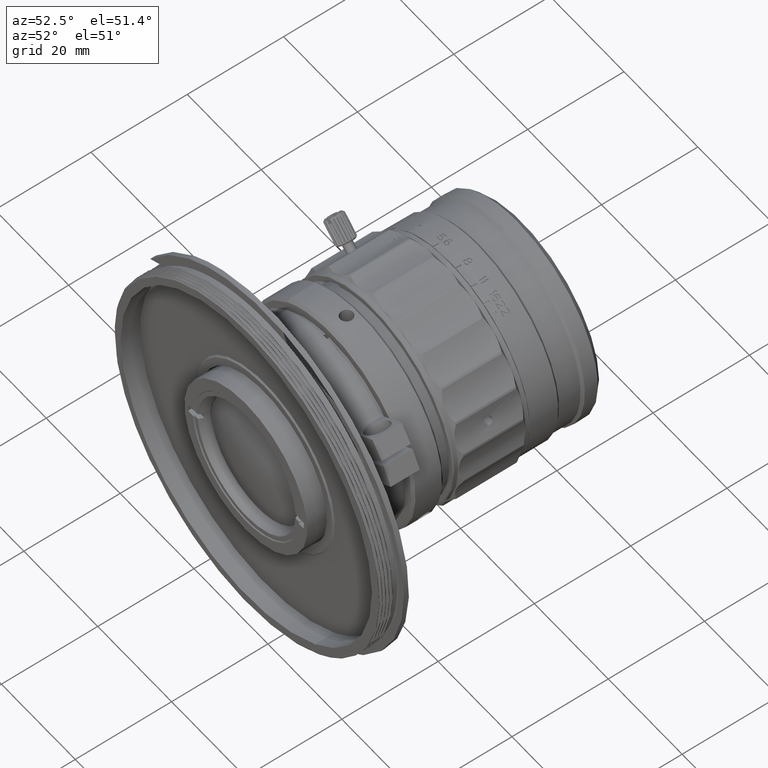
[diagram: clean part render]
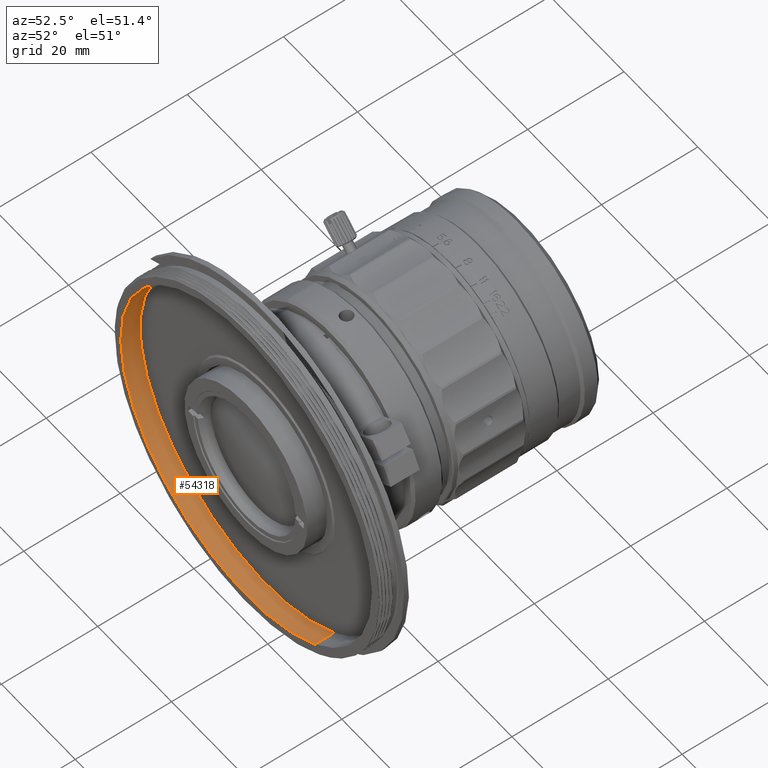
[diagram: same view with one face highlighted and labeled with its STEP entity id]
A machine part, auxiliary view. The second image highlights one B-rep face of the part: STEP entity #54318.
In plain terms, the highlighted face is a freeform B-spline surface patch.
Its self-contained STEP definition (entity closure, byte-faithful):
#219 = CARTESIAN_POINT ( 'NONE',  ( -16.64279739544110726, 0.8732624000000003273, 32.12670380965554529 ) ) ;
#581 = CARTESIAN_POINT ( 'NONE',  ( -20.69433885509236859, 0.8732623999999999942, 53.65615790896836756 ) ) ;
#1313 = CARTESIAN_POINT ( 'NONE',  ( -14.20661645340610768, 0.8732623999999999942, 28.39781218567794596 ) ) ;
#6110 = CARTESIAN_POINT ( 'NONE',  ( -20.93611475789889198, 0.8732624000000003273, 51.43684290940799286 ) ) ;
#6189 = CARTESIAN_POINT ( 'NONE',  ( -62.48455714706746988, 0.8732623999999999942, 40.12990685627620735 ) ) ;
#7204 = CARTESIAN_POINT ( 'NONE',  ( 31.63514334102845282, 0.8732623999999999942, 20.39460919035324693 ) ) ;
#8646 = EDGE_CURVE ( 'NONE', #68534, #66605, #19183, .T. ) ;
#8663 = CARTESIAN_POINT ( 'NONE',  ( -16.29049983246280675, 0.8732623999999997721, 66.20015334309938737 ) ) ;
#12754 = CARTESIAN_POINT ( 'NONE',  ( 14.91448811056497803, 0.8732624000000003273, 14.83715058641785234 ) ) ;
#13113 = CARTESIAN_POINT ( 'NONE',  ( 23.65856379197657589, 0.8732624000000003273, 16.48266301259041455 ) ) ;
#14207 = CARTESIAN_POINT ( 'NONE',  ( -12.34372471265816706, 0.8732623999999997721, 71.58884552142055213 ) ) ;
#14569 = CARTESIAN_POINT ( 'NONE',  ( -5.557058089936160350, 0.8732623999999999942, 77.32210827924559737 ) ) ;
#15197 = VERTEX_POINT ( 'NONE', #53230 ) ;
#15787 = EDGE_CURVE ( 'NONE', #64270, #68534, #56801, .T. ) ;
#18287 = CARTESIAN_POINT ( 'NONE',  ( -19.78025437141756271, 0.8732624000000001052, 58.01552239548664858 ) ) ;
#19183 = B_SPLINE_CURVE_WITH_KNOTS ( 'NONE', 1,
 ( #29278, #57713 ),
 .UNSPECIFIED., .F., .F.,
 ( 2, 2 ),
 ( -1.000000000000000000, 0.0000000000000000000 ),
 .UNSPECIFIED. ) ;
#20399 = CARTESIAN_POINT ( 'NONE',  ( 31.63514334102845282, 0.8732623999999999942, 20.39460919035324693 ) ) ;
#22715 = CARTESIAN_POINT ( 'NONE',  ( -4.302752026331986279, 0.8732624000000001052, 19.52881621329521167 ) ) ;
#22790 = CARTESIAN_POINT ( 'NONE',  ( 31.63514334599999600, 4.873262399999999772, 20.39460920399999111 ) ) ;
#23079 = CARTESIAN_POINT ( 'NONE',  ( -19.11015726062574061, 0.8732624000000002162, 60.14502578314828440 ) ) ;
#23443 = CARTESIAN_POINT ( 'NONE',  ( 1.752375564571384103, 0.8732624000000001052, 16.70915889504743745 ) ) ;
#23815 = CARTESIAN_POINT ( 'NONE',  ( -17.67475325270111952, 0.8732623999999999942, 34.10632026060586242 ) ) ;
#24251 = ORIENTED_EDGE ( 'NONE', *, *, #8646, .F. ) ;
#27252 = CARTESIAN_POINT ( 'NONE',  ( -5.557058091676028155, 4.873262399999999772, 77.32210829037175870 ) ) ;
#28257 = CARTESIAN_POINT ( 'NONE',  ( 8.241243460575541135, 0.8732624000000001052, 15.12497729921668466 ) ) ;
#29278 = CARTESIAN_POINT ( 'NONE',  ( -5.557058089936160350, 0.8732623999999999942, 77.32210827924559737 ) ) ;
#29358 = CARTESIAN_POINT ( 'NONE',  ( -2.344895926405202502, 0.8732623999999999942, 18.45614940852807706 ) ) ;
#30081 = CARTESIAN_POINT ( 'NONE',  ( -7.421503861321573581, 0.8732624000000003273, 76.10401781022383716 ) ) ;
#31929 = CARTESIAN_POINT ( 'NONE',  ( -25.29235572621547234, 4.873262399999999772, -16.79759219318050967 ) ) ;
#32799 = CARTESIAN_POINT ( 'NONE',  ( -25.29235572464795823, 0.8732623999999999942, -16.79759220674349152 ) ) ;
#34168 = CARTESIAN_POINT ( 'NONE',  ( 10.46055848390221854, 0.8732624000000001052, 14.88320128061976710 ) ) ;
#34913 = CARTESIAN_POINT ( 'NONE',  ( 17.13832771941751432, 0.8732624000000002162, 15.03298718282532320 ) ) ;
#35646 = CARTESIAN_POINT ( 'NONE',  ( 3.881878965261079006, 0.8732623999999999942, 16.03906174089226866 ) ) ;
#36167 =( BOUNDED_SURFACE ( )  B_SPLINE_SURFACE ( 1, 3, ( 
 ( #27252, #38713, #72321, #22790 ),
 ( #44613, #6189, #32799, #49794 ) ),
 .UNSPECIFIED., .F., .F., .T. ) 
 B_SPLINE_SURFACE_WITH_KNOTS ( ( 2, 2 ),
 ( 4, 4 ),
 ( 0.0000000000000000000, 1.000000000000000000 ),
 ( 0.0000000000000000000, 1.000000000000000000 ),
 .UNSPECIFIED. ) 
 GEOMETRIC_REPRESENTATION_ITEM ( )  RATIONAL_B_SPLINE_SURFACE ( (
 ( 1.000000000000000000, 0.3333333334700690487, 0.3333333334700690487, 1.000000000000000000),
 ( 1.000000000000000000, 0.3333333334700690487, 0.3333333334700690487, 1.000000000000000000) ) ) 
 REPRESENTATION_ITEM ( '' )  SURFACE ( )  );
#37235 = CARTESIAN_POINT ( 'NONE',  ( 31.63514334103840397, 4.873262399999999772, 20.39460920761489859 ) ) ;
#38713 = CARTESIAN_POINT ( 'NONE',  ( -62.48455714706746988, 4.873262399999999772, 40.12990685627620735 ) ) ;
#41253 = B_SPLINE_CURVE_WITH_KNOTS ( 'NONE', 1,
 ( #37235, #49022 ),
 .UNSPECIFIED., .F., .F.,
 ( 2, 2 ),
 ( -1.000000000000000000, 0.0000000000000000000 ),
 .UNSPECIFIED. ) ;
#41909 = CARTESIAN_POINT ( 'NONE',  ( -9.161757894565660365, 0.8732624000000005493, 74.70568656993935974 ) ) ;
#42605 = EDGE_CURVE ( 'NONE', #15197, #66605, #72828, .T. ) ;
#44613 = CARTESIAN_POINT ( 'NONE',  ( -5.557058091676028155, 0.8732623999999999942, 77.32210829037175870 ) ) ;
#45256 = CARTESIAN_POINT ( 'NONE',  ( -19.96257634547050230, 0.8732623999999999942, 40.38174089792216392 ) ) ;
#46358 = CARTESIAN_POINT ( 'NONE',  ( -19.33665312271969228, 0.8732623999999998832, 38.23883766014719043 ) ) ;
#49022 = CARTESIAN_POINT ( 'NONE',  ( 31.63514334102845282, 0.8732623999999999942, 20.39460919035324693 ) ) ;
#49794 = CARTESIAN_POINT ( 'NONE',  ( 31.63514334599999600, 0.8732623999999999942, 20.39460920399999111 ) ) ;
#50801 = CARTESIAN_POINT ( 'NONE',  ( -12.80828524923441947, 0.8732623999999998832, 26.65755818550059431 ) ) ;
#51778 = EDGE_LOOP ( 'NONE', ( #56979, #70471, #54584, #24251 ) ) ;
#53230 = CARTESIAN_POINT ( 'NONE',  ( 31.63514334103840397, 4.873262399999999772, 20.39460920761489859 ) ) ;
#53334 = CARTESIAN_POINT ( 'NONE',  ( -13.77773935097805413, 0.8732623999999999942, 69.87787609862236593 ) ) ;
#54082 = CARTESIAN_POINT ( 'NONE',  ( -5.557058084526319774, 4.873262399999999772, 77.32210828835310679 ) ) ;
#54318 = ADVANCED_FACE ( 'NONE', ( #73039 ), #36167, .T. ) ;
#54462 = CARTESIAN_POINT ( 'NONE',  ( -62.48455713684410995, 4.873262399999999772, 40.12990686295542986 ) ) ;
#54584 = ORIENTED_EDGE ( 'NONE', *, *, #42605, .T. ) ;
#56701 = CARTESIAN_POINT ( 'NONE',  ( -20.98216558739926896, 0.8732623999999999942, 46.98291320547253491 ) ) ;
#56801 = B_SPLINE_CURVE_WITH_KNOTS ( 'NONE', 3,
 ( #7204, #68133, #63681, #13113, #62962, #34913, #12754, #34168, #28257, #35646, #23443, #29358, #22715, #62591, #58151, #50801, #1313, #219, #23815, #46358, #45256, #68869, #56701, #6110, #581, #18287, #23079, #65140, #8663, #53334, #14207, #41909, #30081, #14569 ),
 .UNSPECIFIED., .F., .F.,
 ( 4, 2, 2, 2, 2, 2, 2, 2, 2, 2, 2, 2, 2, 2, 2, 2, 4 ),
 ( 0.0000000000000000000, 0.1963495408493622640, 0.3926990816987245281, 0.5890486225480867644, 0.7853981633974490562, 0.9817477042468113480, 1.178097245096173973, 1.374446785945536265, 1.570796326794898778, 1.767145867644260848, 1.963495408493623140, 2.159844949342985210, 2.356194490192347946, 2.552544031041710237, 2.748893571891072085, 2.945243112740433933, 3.141592653589795336 ),
 .UNSPECIFIED. ) ;
#56979 = ORIENTED_EDGE ( 'NONE', *, *, #15787, .F. ) ;
#57713 = CARTESIAN_POINT ( 'NONE',  ( -5.557058084526319774, 4.873262399999999772, 77.32210828835310679 ) ) ;
#58151 = CARTESIAN_POINT ( 'NONE',  ( -9.691444009371828372, 0.8732623999999997721, 23.47559145742900455 ) ) ;
#61359 = CARTESIAN_POINT ( 'NONE',  ( -5.557058089936160350, 0.8732623999999999942, 77.32210827924559737 ) ) ;
#62591 = CARTESIAN_POINT ( 'NONE',  ( -7.980474647648938991, 0.8732623999999998832, 22.04157680949872145 ) ) ;
#62962 = CARTESIAN_POINT ( 'NONE',  ( 21.51566042082279751, 0.8732623999999999942, 15.85673977004236868 ) ) ;
#63681 = CARTESIAN_POINT ( 'NONE',  ( 27.79108099605830517, 0.8732623999999999942, 18.14456277304170939 ) ) ;
#64270 = VERTEX_POINT ( 'NONE', #20399 ) ;
#65140 = CARTESIAN_POINT ( 'NONE',  ( -17.36316676053515096, 0.8732624000000001052, 64.24229731166289525 ) ) ;
#66605 = VERTEX_POINT ( 'NONE', #54082 ) ;
#68133 = CARTESIAN_POINT ( 'NONE',  ( 29.77069756133183631, 0.8732623999999999942, 19.17651871962957344 ) ) ;
#68534 = VERTEX_POINT ( 'NONE', #61359 ) ;
#68869 = CARTESIAN_POINT ( 'NONE',  ( -20.78632892901134355, 0.8732623999999997721, 44.75907362877713780 ) ) ;
#69028 = EDGE_CURVE ( 'NONE', #15197, #64270, #41253, .T. ) ;
#70471 = ORIENTED_EDGE ( 'NONE', *, *, #69028, .F. ) ;
#71815 = CARTESIAN_POINT ( 'NONE',  ( -5.557058084526319774, 4.873262399999999772, 77.32210828835310679 ) ) ;
#72182 = CARTESIAN_POINT ( 'NONE',  ( 31.63514334103840397, 4.873262399999999772, 20.39460920761489859 ) ) ;
#72321 = CARTESIAN_POINT ( 'NONE',  ( -25.29235572464795823, 4.873262399999999772, -16.79759220674349152 ) ) ;
#72828 =( BOUNDED_CURVE ( )  B_SPLINE_CURVE ( 3, ( #72182, #31929, #54462, #71815 ),
 .UNSPECIFIED., .F., .F. ) 
 B_SPLINE_CURVE_WITH_KNOTS ( ( 4, 4 ),
 ( -3.141592653589795336, 0.0000000000000000000 ),
 .UNSPECIFIED. ) 
 CURVE ( )  GEOMETRIC_REPRESENTATION_ITEM ( )  RATIONAL_B_SPLINE_CURVE ( ( 1.000000000000000000, 0.3333333335299309419, 0.3333333335299309419, 1.000000000000000000 ) ) 
 REPRESENTATION_ITEM ( '' )  );
#73039 = FACE_OUTER_BOUND ( 'NONE', #51778, .T. ) ;